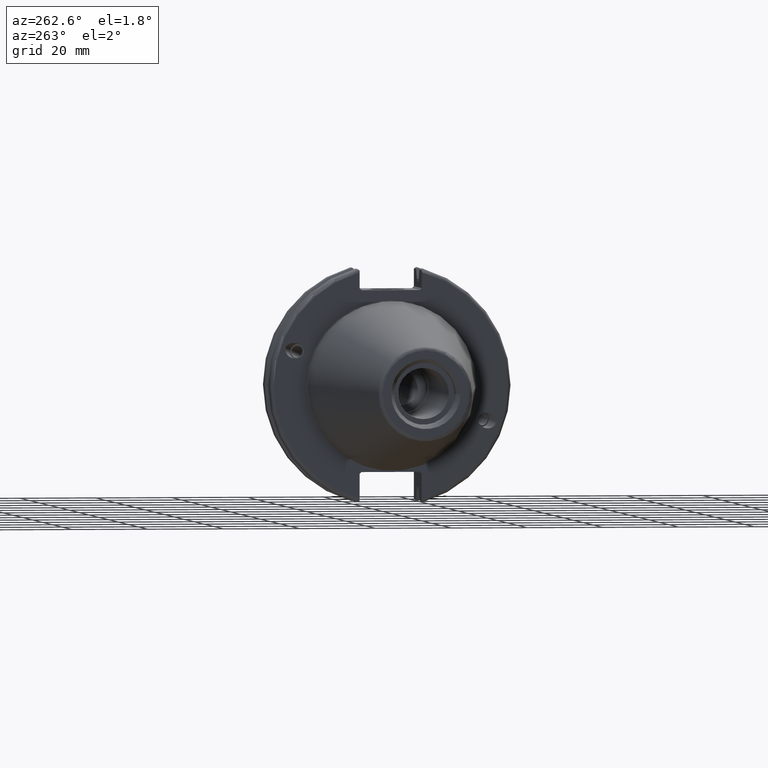
[diagram: clean part render]
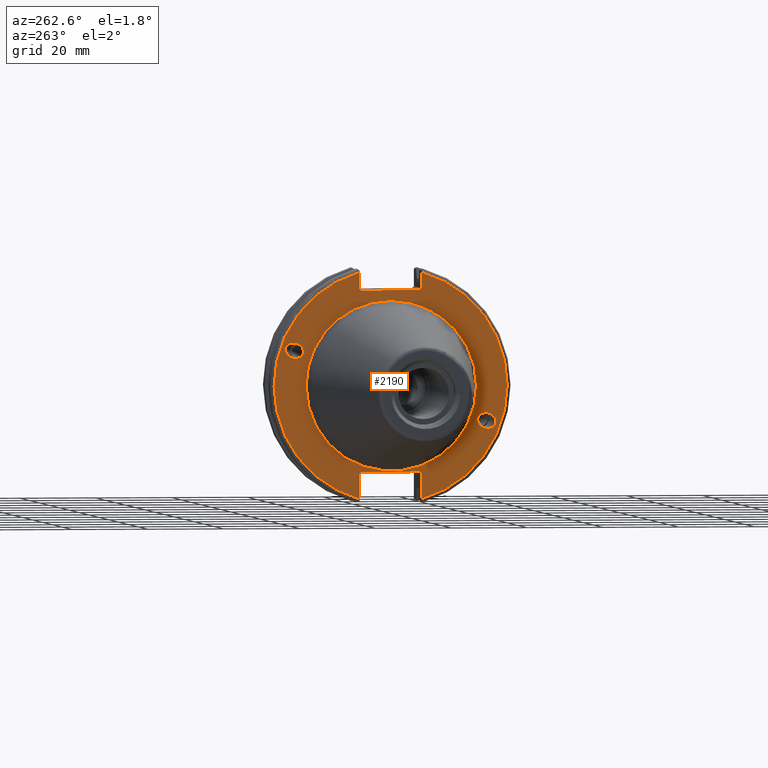
[diagram: same view with one face highlighted and labeled with its STEP entity id]
A machine part, auxiliary view. The second image highlights one B-rep face of the part: STEP entity #2190.
In plain terms, the highlighted planar face has unit normal (-1, 0, 0).
Its self-contained STEP definition (entity closure, byte-faithful):
#39=ELLIPSE('',#2419,2.44154917752291,2.);
#48=ELLIPSE('',#2467,2.44154917752291,2.);
#60=PLANE('',#2480);
#132=FACE_BOUND('',#350,.T.);
#133=FACE_BOUND('',#351,.T.);
#134=FACE_BOUND('',#352,.T.);
#232=FACE_OUTER_BOUND('',#349,.T.);
#349=EDGE_LOOP('',(#1818,#1819,#1820,#1821,#1822,#1823,#1824,#1825,#1826,
#1827,#1828,#1829));
#350=EDGE_LOOP('',(#1830));
#351=EDGE_LOOP('',(#1831));
#352=EDGE_LOOP('',(#1832,#1833));
#448=LINE('',#3960,#553);
#449=LINE('',#3962,#554);
#450=LINE('',#3964,#555);
#451=LINE('',#3966,#556);
#452=LINE('',#3968,#557);
#453=LINE('',#3972,#558);
#454=LINE('',#3974,#559);
#455=LINE('',#3976,#560);
#456=LINE('',#3978,#561);
#457=LINE('',#3979,#562);
#553=VECTOR('',#3063,10.);
#554=VECTOR('',#3064,10.);
#555=VECTOR('',#3065,10.);
#556=VECTOR('',#3066,10.);
#557=VECTOR('',#3067,10.);
#558=VECTOR('',#3070,10.);
#559=VECTOR('',#3071,10.);
#560=VECTOR('',#3072,10.);
#561=VECTOR('',#3073,10.);
#562=VECTOR('',#3074,10.);
#751=CIRCLE('',#2476,22.3);
#752=CIRCLE('',#2477,22.3);
#755=CIRCLE('',#2481,30.75);
#756=CIRCLE('',#2482,30.75);
#913=VERTEX_POINT('',#3737);
#958=VERTEX_POINT('',#3930);
#964=VERTEX_POINT('',#3947);
#965=VERTEX_POINT('',#3949);
#967=VERTEX_POINT('',#3956);
#968=VERTEX_POINT('',#3957);
#969=VERTEX_POINT('',#3959);
#970=VERTEX_POINT('',#3961);
#971=VERTEX_POINT('',#3963);
#972=VERTEX_POINT('',#3965);
#973=VERTEX_POINT('',#3967);
#974=VERTEX_POINT('',#3969);
#975=VERTEX_POINT('',#3971);
#976=VERTEX_POINT('',#3973);
#977=VERTEX_POINT('',#3975);
#978=VERTEX_POINT('',#3977);
#1201=EDGE_CURVE('',#913,#913,#39,.T.);
#1262=EDGE_CURVE('',#958,#958,#48,.T.);
#1270=EDGE_CURVE('',#964,#965,#751,.T.);
#1271=EDGE_CURVE('',#965,#964,#752,.T.);
#1274=EDGE_CURVE('',#967,#968,#755,.T.);
#1275=EDGE_CURVE('',#967,#969,#448,.T.);
#1276=EDGE_CURVE('',#970,#969,#449,.T.);
#1277=EDGE_CURVE('',#970,#971,#450,.T.);
#1278=EDGE_CURVE('',#972,#971,#451,.T.);
#1279=EDGE_CURVE('',#972,#973,#452,.T.);
#1280=EDGE_CURVE('',#974,#973,#756,.T.);
#1281=EDGE_CURVE('',#974,#975,#453,.T.);
#1282=EDGE_CURVE('',#976,#975,#454,.T.);
#1283=EDGE_CURVE('',#976,#977,#455,.T.);
#1284=EDGE_CURVE('',#978,#977,#456,.T.);
#1285=EDGE_CURVE('',#978,#968,#457,.T.);
#1818=ORIENTED_EDGE('',*,*,#1274,.F.);
#1819=ORIENTED_EDGE('',*,*,#1275,.T.);
#1820=ORIENTED_EDGE('',*,*,#1276,.F.);
#1821=ORIENTED_EDGE('',*,*,#1277,.T.);
#1822=ORIENTED_EDGE('',*,*,#1278,.F.);
#1823=ORIENTED_EDGE('',*,*,#1279,.T.);
#1824=ORIENTED_EDGE('',*,*,#1280,.F.);
#1825=ORIENTED_EDGE('',*,*,#1281,.T.);
#1826=ORIENTED_EDGE('',*,*,#1282,.F.);
#1827=ORIENTED_EDGE('',*,*,#1283,.T.);
#1828=ORIENTED_EDGE('',*,*,#1284,.F.);
#1829=ORIENTED_EDGE('',*,*,#1285,.T.);
#1830=ORIENTED_EDGE('',*,*,#1201,.T.);
#1831=ORIENTED_EDGE('',*,*,#1262,.T.);
#1832=ORIENTED_EDGE('',*,*,#1271,.F.);
#1833=ORIENTED_EDGE('',*,*,#1270,.F.);
#2190=ADVANCED_FACE('',(#232,#132,#133,#134),#60,.T.);
#2419=AXIS2_PLACEMENT_3D('',#3739,#2918,#2919);
#2467=AXIS2_PLACEMENT_3D('',#3932,#3031,#3032);
#2476=AXIS2_PLACEMENT_3D('',#3950,#3051,#3052);
#2477=AXIS2_PLACEMENT_3D('',#3951,#3053,#3054);
#2480=AXIS2_PLACEMENT_3D('',#3955,#3059,#3060);
#2481=AXIS2_PLACEMENT_3D('',#3958,#3061,#3062);
#2482=AXIS2_PLACEMENT_3D('',#3970,#3068,#3069);
#2918=DIRECTION('center_axis',(1.,0.,0.));
#2919=DIRECTION('ref_axis',(0.,-0.939692620785912,-0.34202014332566));
#3031=DIRECTION('center_axis',(1.,0.,0.));
#3032=DIRECTION('ref_axis',(0.,0.939692620785912,0.34202014332566));
#3051=DIRECTION('center_axis',(-1.,0.,0.));
#3052=DIRECTION('ref_axis',(0.,-1.,1.83697019872103E-16));
#3053=DIRECTION('center_axis',(-1.,0.,0.));
#3054=DIRECTION('ref_axis',(0.,-1.,1.83697019872103E-16));
#3059=DIRECTION('center_axis',(-1.,0.,0.));
#3060=DIRECTION('ref_axis',(0.,0.,1.));
#3061=DIRECTION('center_axis',(1.,0.,0.));
#3062=DIRECTION('ref_axis',(0.,-1.,1.60812264967664E-16));
#3063=DIRECTION('',(0.,0.,-1.));
#3064=DIRECTION('',(0.,-0.70710678118655,0.707106781186545));
#3065=DIRECTION('',(0.,1.,0.));
#3066=DIRECTION('',(0.,-0.707106781186549,-0.707106781186546));
#3067=DIRECTION('',(0.,0.,1.));
#3068=DIRECTION('center_axis',(1.,0.,0.));
#3069=DIRECTION('ref_axis',(0.,1.,1.60812264967664E-16));
#3070=DIRECTION('',(0.,0.,1.));
#3071=DIRECTION('',(0.,0.707106781186549,-0.707106781186546));
#3072=DIRECTION('',(0.,-1.,0.));
#3073=DIRECTION('',(0.,0.707106781186549,0.707106781186546));
#3074=DIRECTION('',(0.,0.,-1.));
#3737=CARTESIAN_POINT('',(3.175,-23.0773950158153,-8.39948487016003));
#3739=CARTESIAN_POINT('Origin',(3.175,-25.3717007612195,-9.23454386979306));
#3930=CARTESIAN_POINT('',(3.175,23.0773950158153,8.39948487016003));
#3932=CARTESIAN_POINT('Origin',(3.175,25.3717007612195,9.23454386979306));
#3947=CARTESIAN_POINT('',(3.175,-2.7309623620986E-15,22.3));
#3949=CARTESIAN_POINT('',(3.175,22.3,-6.8274059052465E-15));
#3950=CARTESIAN_POINT('Origin',(3.175,0.,0.));
#3951=CARTESIAN_POINT('Origin',(3.175,0.,0.));
#3955=CARTESIAN_POINT('Origin',(3.175,31.75,0.));
#3956=CARTESIAN_POINT('',(3.175,-8.18999999999999,29.6392712461019));
#3957=CARTESIAN_POINT('',(3.175,-8.19,-29.6392712461019));
#3958=CARTESIAN_POINT('Origin',(3.175,0.,0.));
#3959=CARTESIAN_POINT('',(3.175,-8.18999999999999,25.5));
#3960=CARTESIAN_POINT('',(3.175,-8.18999999999999,12.5));
#3961=CARTESIAN_POINT('',(3.175,-7.68999999999999,25.));
#3962=CARTESIAN_POINT('',(3.175,8.29500000000007,9.01500000000004));
#3963=CARTESIAN_POINT('',(3.175,7.69,25.));
#3964=CARTESIAN_POINT('',(3.175,15.875,25.));
#3965=CARTESIAN_POINT('',(3.175,8.19,25.5));
#3966=CARTESIAN_POINT('',(3.175,7.58000000000002,24.89));
#3967=CARTESIAN_POINT('',(3.175,8.19,29.6392712461019));
#3968=CARTESIAN_POINT('',(3.175,8.19,12.5));
#3969=CARTESIAN_POINT('',(3.175,8.18999999999999,-29.6392712461019));
#3970=CARTESIAN_POINT('Origin',(3.175,0.,0.));
#3971=CARTESIAN_POINT('',(3.175,8.18999999999999,-23.1));
#3972=CARTESIAN_POINT('',(3.175,8.18999999999999,-11.3));
#3973=CARTESIAN_POINT('',(3.175,7.69,-22.6));
#3974=CARTESIAN_POINT('',(3.175,8.18000000000002,-23.09));
#3975=CARTESIAN_POINT('',(3.175,-7.69,-22.6));
#3976=CARTESIAN_POINT('',(3.175,15.875,-22.6));
#3977=CARTESIAN_POINT('',(3.175,-8.19,-23.1));
#3978=CARTESIAN_POINT('',(3.175,7.69500000000004,-7.21500000000002));
#3979=CARTESIAN_POINT('',(3.175,-8.19,-11.3));